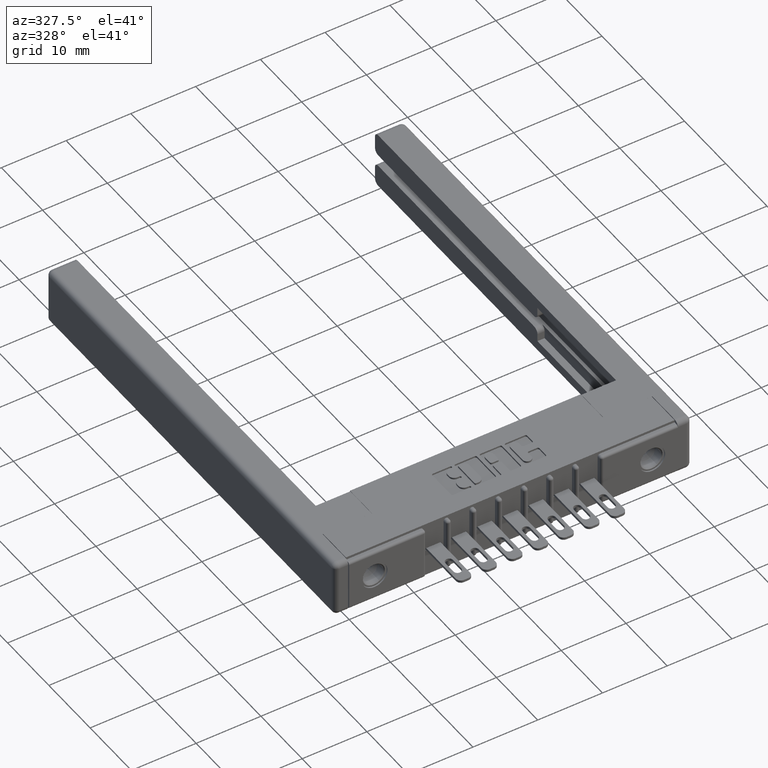
[diagram: clean part render]
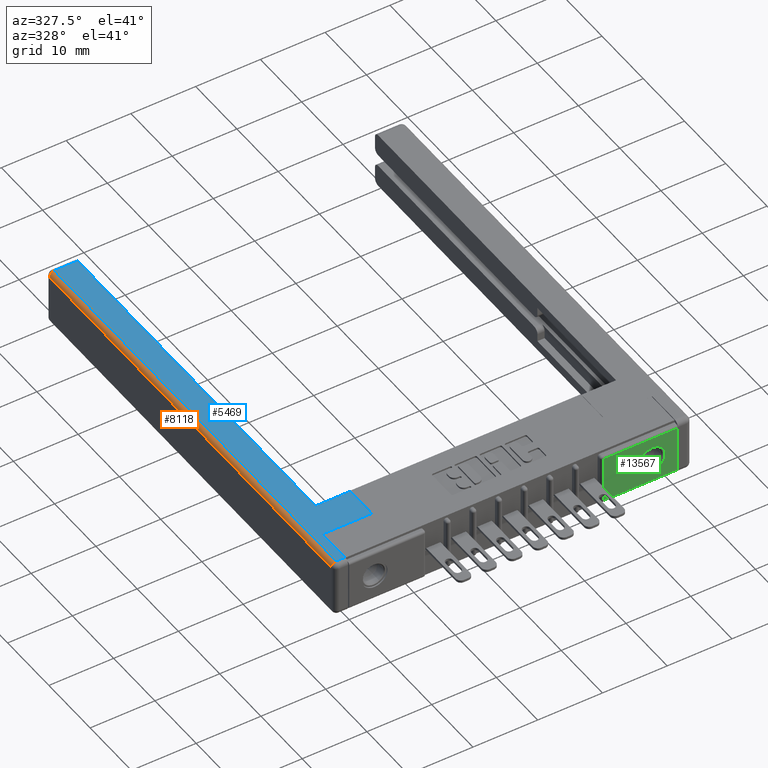
[diagram: same view with three faces highlighted in distinct colors, each labeled with its STEP entity id]
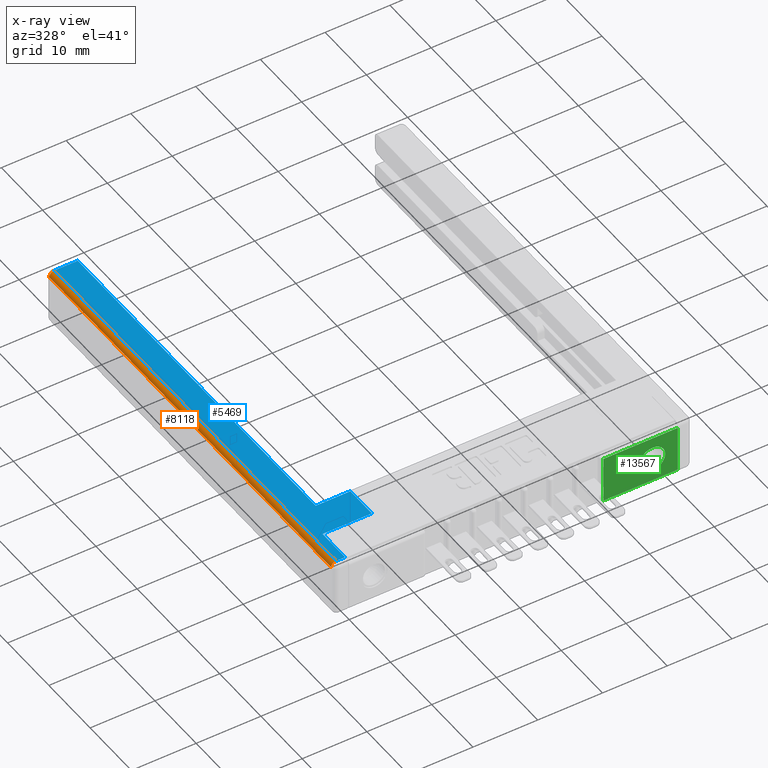
[diagram: x-ray of the same camera — body ghosted, the three highlighted faces saturated]
A machine part, auxiliary view with three faces highlighted in distinct colors.
The next image is the same camera in x-ray (body ghosted, the three faces saturated) — at least one of them is partly hidden behind the body in this view.
Their STEP definitions:

[orange] entity #8118 — the highlighted cylindrical surface (edge-blend (fillet) strip) has radius 0.762 mm, axis along (0, 1, 0).
#248 = EDGE_CURVE ( 'NONE', #13259, #4473, #12037, .T. ) ;
#261 = CIRCLE ( 'NONE', #8744, 0.02999999999999999900 ) ;
#316 = VECTOR ( 'NONE', #1239, 39.37007874015748100 ) ;
#378 = CARTESIAN_POINT ( 'NONE',  ( 0.02999999999999999900, 2.719999999999999800, -0.02999999999999999900 ) ) ;
#827 = ORIENTED_EDGE ( 'NONE', *, *, #10820, .F. ) ;
#1239 = DIRECTION ( 'NONE',  ( 0.0000000000000000000, -1.000000000000000000, 0.0000000000000000000 ) ) ;
#1289 = CARTESIAN_POINT ( 'NONE',  ( 0.02999999999999999900, 0.0000000000000000000, 0.0000000000000000000 ) ) ;
#2436 = DIRECTION ( 'NONE',  ( 0.0000000000000000000, 0.0000000000000000000, 1.000000000000000000 ) ) ;
#3545 = CYLINDRICAL_SURFACE ( 'NONE', #9243, 0.02999999999999999900 ) ;
#3649 = VERTEX_POINT ( 'NONE', #7676 ) ;
#4086 = EDGE_CURVE ( 'NONE', #11231, #3649, #8409, .T. ) ;
#4142 = ORIENTED_EDGE ( 'NONE', *, *, #5510, .T. ) ;
#4388 = CARTESIAN_POINT ( 'NONE',  ( 0.02999999999999999900, 0.02999999999999998800, -0.02999999999999999900 ) ) ;
#4460 = ORIENTED_EDGE ( 'NONE', *, *, #4086, .F. ) ;
#4473 = VERTEX_POINT ( 'NONE', #10323 ) ;
#4691 = DIRECTION ( 'NONE',  ( 0.0000000000000000000, 0.0000000000000000000, 1.000000000000000000 ) ) ;
#5148 = AXIS2_PLACEMENT_3D ( 'NONE', #4388, #8623, #10790 ) ;
#5399 = VECTOR ( 'NONE', #10024, 39.37007874015748100 ) ;
#5510 = EDGE_CURVE ( 'NONE', #11231, #4473, #261, .T. ) ;
#5525 = FACE_OUTER_BOUND ( 'NONE', #8503, .T. ) ;
#5581 = CARTESIAN_POINT ( 'NONE',  ( 0.02999999999999999900, 0.0000000000000000000, -0.02999999999999999900 ) ) ;
#6687 = DIRECTION ( 'NONE',  ( 0.0000000000000000000, 1.000000000000000000, 0.0000000000000000000 ) ) ;
#7510 = CARTESIAN_POINT ( 'NONE',  ( 0.0000000000000000000, 0.02999999999999998800, -0.02999999999999999900 ) ) ;
#7676 = CARTESIAN_POINT ( 'NONE',  ( 0.02999999999999999900, 0.02999999999999998800, 0.0000000000000000000 ) ) ;
#8118 = ADVANCED_FACE ( 'NONE', ( #5525 ), #3545, .T. ) ;
#8168 = CARTESIAN_POINT ( 'NONE',  ( 0.02999999999999999900, 2.719999999999999800, 0.0000000000000000000 ) ) ;
#8409 = LINE ( 'NONE', #1289, #316 ) ;
#8503 = EDGE_LOOP ( 'NONE', ( #4142, #12620, #827, #4460 ) ) ;
#8623 = DIRECTION ( 'NONE',  ( 0.0000000000000000000, -1.000000000000000000, 0.0000000000000000000 ) ) ;
#8744 = AXIS2_PLACEMENT_3D ( 'NONE', #378, #13276, #4691 ) ;
#9243 = AXIS2_PLACEMENT_3D ( 'NONE', #5581, #6687, #2436 ) ;
#10024 = DIRECTION ( 'NONE',  ( -0.0000000000000000000, 1.000000000000000000, -0.0000000000000000000 ) ) ;
#10323 = CARTESIAN_POINT ( 'NONE',  ( 0.0000000000000000000, 2.719999999999999800, -0.02999999999999999900 ) ) ;
#10790 = DIRECTION ( 'NONE',  ( 0.0000000000000000000, 0.0000000000000000000, -1.000000000000000000 ) ) ;
#10820 = EDGE_CURVE ( 'NONE', #3649, #13259, #13293, .T. ) ;
#11231 = VERTEX_POINT ( 'NONE', #8168 ) ;
#12037 = LINE ( 'NONE', #12186, #5399 ) ;
#12186 = CARTESIAN_POINT ( 'NONE',  ( 0.0000000000000000000, 2.750000000000000000, -0.02999999999999999900 ) ) ;
#12620 = ORIENTED_EDGE ( 'NONE', *, *, #248, .F. ) ;
#13259 = VERTEX_POINT ( 'NONE', #7510 ) ;
#13276 = DIRECTION ( 'NONE',  ( -0.0000000000000000000, -1.000000000000000000, 0.0000000000000000000 ) ) ;
#13293 = CIRCLE ( 'NONE', #5148, 0.02999999999999999900 ) ;

[blue] entity #5469 — the highlighted planar face has unit normal (0, 0, -1).
#72 = EDGE_CURVE ( 'NONE', #2257, #8179, #6594, .T. ) ;
#103 = CARTESIAN_POINT ( 'NONE',  ( 0.1730000000000000400, 0.4499999999999999600, 0.0000000000000000000 ) ) ;
#173 = CARTESIAN_POINT ( 'NONE',  ( 0.3840000000000000600, 0.4499999999999999600, 0.0000000000000000000 ) ) ;
#316 = VECTOR ( 'NONE', #1239, 39.37007874015748100 ) ;
#322 = DIRECTION ( 'NONE',  ( -1.000000000000000000, 0.0000000000000000000, -0.0000000000000000000 ) ) ;
#1211 = DIRECTION ( 'NONE',  ( -1.393799996767481300E-016, 1.000000000000000000, -0.0000000000000000000 ) ) ;
#1239 = DIRECTION ( 'NONE',  ( 0.0000000000000000000, -1.000000000000000000, 0.0000000000000000000 ) ) ;
#1289 = CARTESIAN_POINT ( 'NONE',  ( 0.02999999999999999900, 0.0000000000000000000, 0.0000000000000000000 ) ) ;
#1626 = DIRECTION ( 'NONE',  ( -0.0000000000000000000, 1.000000000000000000, -0.0000000000000000000 ) ) ;
#2257 = VERTEX_POINT ( 'NONE', #10489 ) ;
#2421 = EDGE_CURVE ( 'NONE', #9430, #4490, #3831, .T. ) ;
#2798 = VECTOR ( 'NONE', #10010, 39.37007874015748100 ) ;
#2953 = CARTESIAN_POINT ( 'NONE',  ( 0.0000000000000000000, 2.719999999999999800, 0.0000000000000000000 ) ) ;
#3155 = VECTOR ( 'NONE', #1211, 39.37007874015748100 ) ;
#3285 = DIRECTION ( 'NONE',  ( -1.000000000000000000, -0.0000000000000000000, -0.0000000000000000000 ) ) ;
#3307 = VECTOR ( 'NONE', #8880, 39.37007874015748100 ) ;
#3550 = PLANE ( 'NONE',  #10716 ) ;
#3649 = VERTEX_POINT ( 'NONE', #7676 ) ;
#3702 = EDGE_CURVE ( 'NONE', #6473, #2257, #11940, .T. ) ;
#3805 = ORIENTED_EDGE ( 'NONE', *, *, #13559, .T. ) ;
#3831 = LINE ( 'NONE', #10343, #3155 ) ;
#3963 = VERTEX_POINT ( 'NONE', #11821 ) ;
#4086 = EDGE_CURVE ( 'NONE', #11231, #3649, #8409, .T. ) ;
#4171 = ORIENTED_EDGE ( 'NONE', *, *, #2421, .T. ) ;
#4320 = ORIENTED_EDGE ( 'NONE', *, *, #3702, .T. ) ;
#4490 = VERTEX_POINT ( 'NONE', #7096 ) ;
#4611 = CARTESIAN_POINT ( 'NONE',  ( 0.0000000000000000000, 0.0000000000000000000, 0.0000000000000000000 ) ) ;
#5211 = CARTESIAN_POINT ( 'NONE',  ( 0.3840000000000000600, 0.2450000000000000000, 0.0000000000000000000 ) ) ;
#5469 = ADVANCED_FACE ( 'NONE', ( #5782 ), #3550, .F. ) ;
#5538 = LINE ( 'NONE', #7119, #11346 ) ;
#5782 = FACE_OUTER_BOUND ( 'NONE', #7648, .T. ) ;
#5934 = CARTESIAN_POINT ( 'NONE',  ( 0.1730000000000000400, 2.750000000000000000, 0.0000000000000000000 ) ) ;
#6231 = LINE ( 'NONE', #2953, #13569 ) ;
#6473 = VERTEX_POINT ( 'NONE', #5211 ) ;
#6594 = LINE ( 'NONE', #103, #8822 ) ;
#7074 = CARTESIAN_POINT ( 'NONE',  ( 0.08400000000000007500, 0.02999999999999998800, 0.0000000000000000000 ) ) ;
#7096 = CARTESIAN_POINT ( 'NONE',  ( 0.08400000000000004700, 0.2449999999999999400, 0.0000000000000000000 ) ) ;
#7119 = CARTESIAN_POINT ( 'NONE',  ( 0.08400000000000010200, 0.02999999999999997100, 0.0000000000000000000 ) ) ;
#7370 = DIRECTION ( 'NONE',  ( -1.000000000000000000, 0.0000000000000000000, 0.0000000000000000000 ) ) ;
#7648 = EDGE_LOOP ( 'NONE', ( #13989, #13424, #13679, #3805, #4171, #9236, #4320, #7677 ) ) ;
#7676 = CARTESIAN_POINT ( 'NONE',  ( 0.02999999999999999900, 0.02999999999999998800, 0.0000000000000000000 ) ) ;
#7677 = ORIENTED_EDGE ( 'NONE', *, *, #72, .T. ) ;
#7891 = CARTESIAN_POINT ( 'NONE',  ( 0.3840000000000000600, 0.2450000000000000000, 0.0000000000000000000 ) ) ;
#8168 = CARTESIAN_POINT ( 'NONE',  ( 0.02999999999999999900, 2.719999999999999800, 0.0000000000000000000 ) ) ;
#8179 = VERTEX_POINT ( 'NONE', #9138 ) ;
#8409 = LINE ( 'NONE', #1289, #316 ) ;
#8657 = LINE ( 'NONE', #5934, #9689 ) ;
#8822 = VECTOR ( 'NONE', #3285, 39.37007874015748100 ) ;
#8880 = DIRECTION ( 'NONE',  ( -0.0000000000000000000, 1.000000000000000000, -0.0000000000000000000 ) ) ;
#9138 = CARTESIAN_POINT ( 'NONE',  ( 0.1730000000000000400, 0.4499999999999999600, 0.0000000000000000000 ) ) ;
#9236 = ORIENTED_EDGE ( 'NONE', *, *, #11028, .T. ) ;
#9430 = VERTEX_POINT ( 'NONE', #7074 ) ;
#9689 = VECTOR ( 'NONE', #1626, 39.37007874015748100 ) ;
#10010 = DIRECTION ( 'NONE',  ( 1.000000000000000000, 1.138269997360109700E-016, -0.0000000000000000000 ) ) ;
#10207 = DIRECTION ( 'NONE',  ( 1.000000000000000000, -3.508568016442572800E-016, 0.0000000000000000000 ) ) ;
#10343 = CARTESIAN_POINT ( 'NONE',  ( 0.08400000000000004700, 0.2449999999999999400, 0.0000000000000000000 ) ) ;
#10489 = CARTESIAN_POINT ( 'NONE',  ( 0.3840000000000000600, 0.4499999999999999600, 0.0000000000000000000 ) ) ;
#10716 = AXIS2_PLACEMENT_3D ( 'NONE', #4611, #12202, #322 ) ;
#11028 = EDGE_CURVE ( 'NONE', #4490, #6473, #13096, .T. ) ;
#11231 = VERTEX_POINT ( 'NONE', #8168 ) ;
#11346 = VECTOR ( 'NONE', #10207, 39.37007874015748100 ) ;
#11821 = CARTESIAN_POINT ( 'NONE',  ( 0.1730000000000000400, 2.719999999999999800, 0.0000000000000000000 ) ) ;
#11940 = LINE ( 'NONE', #173, #3307 ) ;
#12202 = DIRECTION ( 'NONE',  ( 0.0000000000000000000, 0.0000000000000000000, -1.000000000000000000 ) ) ;
#12870 = EDGE_CURVE ( 'NONE', #8179, #3963, #8657, .T. ) ;
#13096 = LINE ( 'NONE', #7891, #2798 ) ;
#13424 = ORIENTED_EDGE ( 'NONE', *, *, #13722, .T. ) ;
#13559 = EDGE_CURVE ( 'NONE', #3649, #9430, #5538, .T. ) ;
#13569 = VECTOR ( 'NONE', #7370, 39.37007874015748100 ) ;
#13679 = ORIENTED_EDGE ( 'NONE', *, *, #4086, .T. ) ;
#13722 = EDGE_CURVE ( 'NONE', #3963, #11231, #6231, .T. ) ;
#13989 = ORIENTED_EDGE ( 'NONE', *, *, #12870, .T. ) ;

[green] entity #13567 — the highlighted planar face has unit normal (0, -1, 0).
#60 = CARTESIAN_POINT ( 'NONE',  ( 1.998000000000000000, 0.0000000000000000000, -0.3130000000000000600 ) ) ;
#487 = ORIENTED_EDGE ( 'NONE', *, *, #13628, .T. ) ;
#874 = CARTESIAN_POINT ( 'NONE',  ( 1.843000000000000200, 0.0000000000000000000, -0.2495000000000001100 ) ) ;
#1054 = CIRCLE ( 'NONE', #3719, 0.07800000000000008300 ) ;
#1730 = AXIS2_PLACEMENT_3D ( 'NONE', #6975, #13562, #11404 ) ;
#1816 = VERTEX_POINT ( 'NONE', #874 ) ;
#1894 = CARTESIAN_POINT ( 'NONE',  ( 1.843000000000000200, 0.0000000000000000000, -0.1715000000000000100 ) ) ;
#2660 = ORIENTED_EDGE ( 'NONE', *, *, #4140, .T. ) ;
#2770 = VECTOR ( 'NONE', #9825, 39.37007874015748100 ) ;
#2867 = ORIENTED_EDGE ( 'NONE', *, *, #3379, .F. ) ;
#3029 = EDGE_CURVE ( 'NONE', #8914, #3503, #5783, .T. ) ;
#3171 = LINE ( 'NONE', #60, #6673 ) ;
#3245 = DIRECTION ( 'NONE',  ( 0.0000000000000000000, -1.000000000000000000, 0.0000000000000000000 ) ) ;
#3379 = EDGE_CURVE ( 'NONE', #7311, #1816, #1054, .T. ) ;
#3392 = DIRECTION ( 'NONE',  ( 0.0000000000000000000, 0.0000000000000000000, 1.000000000000000000 ) ) ;
#3395 = FACE_BOUND ( 'NONE', #7314, .T. ) ;
#3503 = VERTEX_POINT ( 'NONE', #5353 ) ;
#3589 = ORIENTED_EDGE ( 'NONE', *, *, #3029, .T. ) ;
#3719 = AXIS2_PLACEMENT_3D ( 'NONE', #1894, #6214, #4162 ) ;
#4113 = EDGE_CURVE ( 'NONE', #1816, #7311, #13855, .T. ) ;
#4140 = EDGE_CURVE ( 'NONE', #10252, #8693, #3171, .T. ) ;
#4162 = DIRECTION ( 'NONE',  ( 0.0000000000000000000, 0.0000000000000000000, 1.000000000000000000 ) ) ;
#4264 = ORIENTED_EDGE ( 'NONE', *, *, #6720, .F. ) ;
#4575 = DIRECTION ( 'NONE',  ( -1.000000000000000000, 0.0000000000000000000, 0.0000000000000000000 ) ) ;
#4873 = CARTESIAN_POINT ( 'NONE',  ( 1.545000000000000800, 0.0000000000000000000, -0.3130000000000000600 ) ) ;
#4946 = DIRECTION ( 'NONE',  ( 2.181987215386777700E-016, -0.0000000000000000000, -1.000000000000000000 ) ) ;
#5216 = VECTOR ( 'NONE', #4946, 39.37007874015748100 ) ;
#5353 = CARTESIAN_POINT ( 'NONE',  ( 1.545000000000000800, 0.0000000000000000000, -0.02999999999999995400 ) ) ;
#5367 = CARTESIAN_POINT ( 'NONE',  ( 1.843000000000000200, 0.0000000000000000000, -0.09349999999999991700 ) ) ;
#5783 = LINE ( 'NONE', #8765, #7497 ) ;
#6214 = DIRECTION ( 'NONE',  ( 0.0000000000000000000, -1.000000000000000000, 0.0000000000000000000 ) ) ;
#6307 = CARTESIAN_POINT ( 'NONE',  ( 1.998000000000000000, 0.0000000000000000000, -0.02999999999999995400 ) ) ;
#6528 = CARTESIAN_POINT ( 'NONE',  ( 1.843000000000000200, 0.0000000000000000000, -0.1715000000000000100 ) ) ;
#6673 = VECTOR ( 'NONE', #10948, 39.37007874015748100 ) ;
#6720 = EDGE_CURVE ( 'NONE', #8914, #8693, #11379, .T. ) ;
#6754 = AXIS2_PLACEMENT_3D ( 'NONE', #6528, #3245, #3392 ) ;
#6975 = CARTESIAN_POINT ( 'NONE',  ( 0.0000000000000000000, 0.0000000000000000000, -0.3430000000000000300 ) ) ;
#7034 = PLANE ( 'NONE',  #1730 ) ;
#7311 = VERTEX_POINT ( 'NONE', #5367 ) ;
#7314 = EDGE_LOOP ( 'NONE', ( #12310, #2867 ) ) ;
#7330 = EDGE_LOOP ( 'NONE', ( #3589, #487, #2660, #4264 ) ) ;
#7497 = VECTOR ( 'NONE', #4575, 39.37007874015748100 ) ;
#7581 = CARTESIAN_POINT ( 'NONE',  ( 1.998000000000000000, 0.0000000000000000000, 0.0000000000000000000 ) ) ;
#8693 = VERTEX_POINT ( 'NONE', #10167 ) ;
#8765 = CARTESIAN_POINT ( 'NONE',  ( 0.0000000000000000000, 0.0000000000000000000, -0.02999999999999995400 ) ) ;
#8914 = VERTEX_POINT ( 'NONE', #6307 ) ;
#9152 = LINE ( 'NONE', #4873, #5216 ) ;
#9825 = DIRECTION ( 'NONE',  ( 0.0000000000000000000, 0.0000000000000000000, -1.000000000000000000 ) ) ;
#10167 = CARTESIAN_POINT ( 'NONE',  ( 1.998000000000000000, 0.0000000000000000000, -0.3130000000000000600 ) ) ;
#10252 = VERTEX_POINT ( 'NONE', #13235 ) ;
#10948 = DIRECTION ( 'NONE',  ( 1.000000000000000000, -0.0000000000000000000, -0.0000000000000000000 ) ) ;
#11379 = LINE ( 'NONE', #7581, #2770 ) ;
#11404 = DIRECTION ( 'NONE',  ( 0.0000000000000000000, -0.0000000000000000000, -1.000000000000000000 ) ) ;
#12310 = ORIENTED_EDGE ( 'NONE', *, *, #4113, .F. ) ;
#12382 = FACE_OUTER_BOUND ( 'NONE', #7330, .T. ) ;
#13235 = CARTESIAN_POINT ( 'NONE',  ( 1.545000000000000800, 0.0000000000000000000, -0.3130000000000000600 ) ) ;
#13562 = DIRECTION ( 'NONE',  ( 0.0000000000000000000, -1.000000000000000000, 0.0000000000000000000 ) ) ;
#13567 = ADVANCED_FACE ( 'NONE', ( #3395, #12382 ), #7034, .T. ) ;
#13628 = EDGE_CURVE ( 'NONE', #3503, #10252, #9152, .T. ) ;
#13855 = CIRCLE ( 'NONE', #6754, 0.07800000000000008300 ) ;